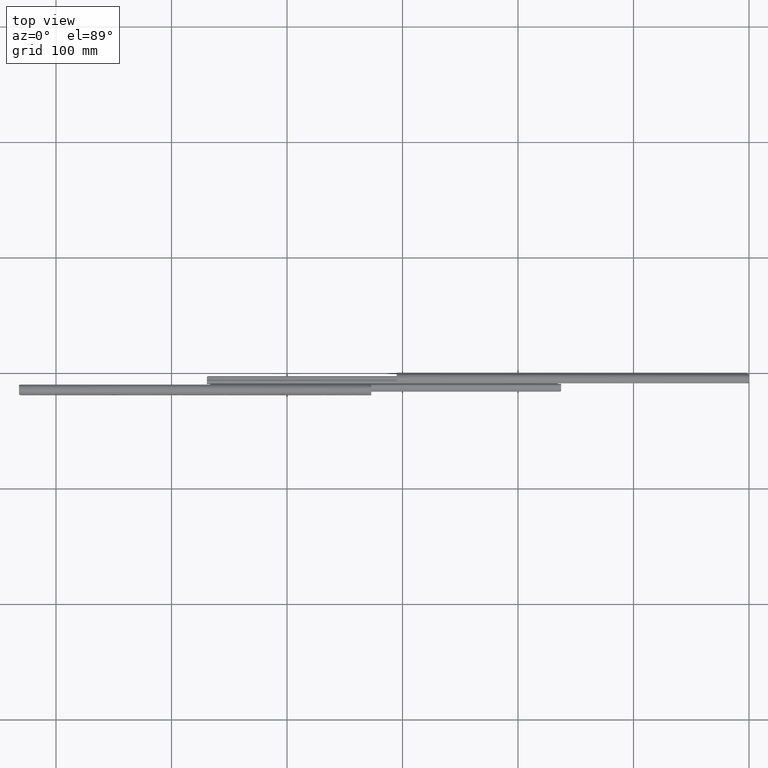
[diagram: clean part render]
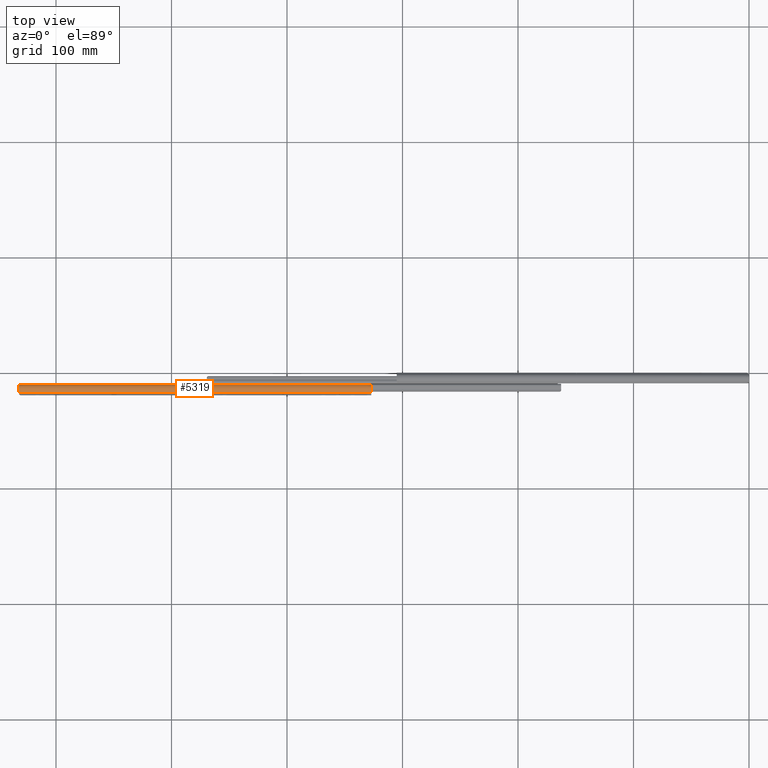
[diagram: same view with one face highlighted and labeled with its STEP entity id]
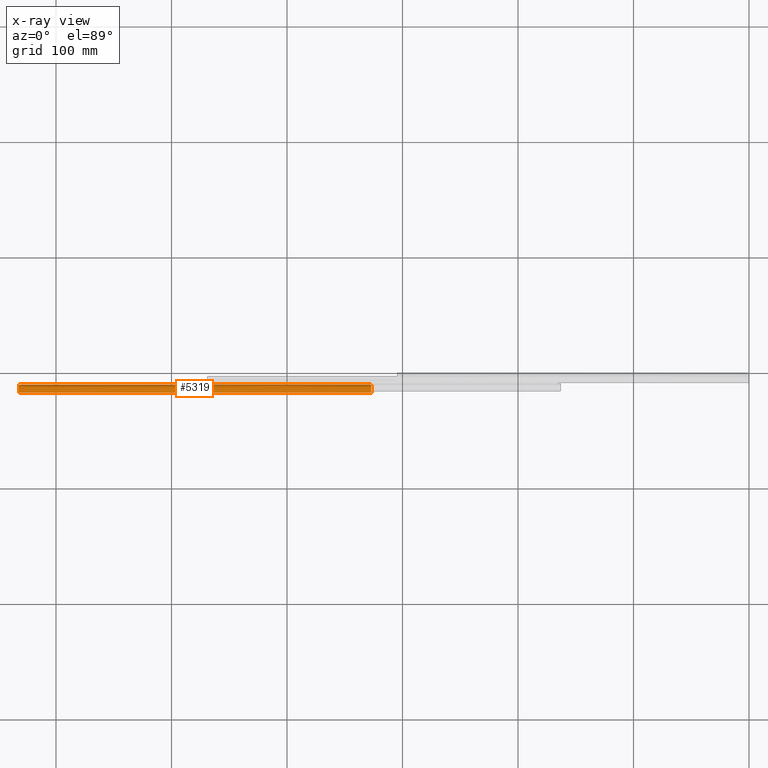
[diagram: x-ray of the same camera — body ghosted, the highlighted face saturated]
A machine part, top view. The second image highlights one B-rep face of the part: STEP entity #5319.
The next image is the same camera in x-ray: the body ghosted, the highlighted face saturated — about 0% of this face is hidden behind the body in this view.
In plain terms, the highlighted face is a freeform B-spline surface patch.
Its self-contained STEP definition (entity closure, byte-faithful):
#3835=CARTESIAN_POINT('',(-630.399999999999980,-10.400000006285840,15.138563460618050));
#3836=VERTEX_POINT('',#3835);
#3837=CARTESIAN_POINT('',(-632.0,-11.302638518556201,16.501614328666850));
#3838=VERTEX_POINT('',#3837);
#3839=CARTESIAN_POINT('',(-630.399999999999980,-10.400000006285840,15.138563460618050));
#3840=CARTESIAN_POINT('',(-630.507510650755190,-10.399999847389481,15.138563060623900));
#3841=CARTESIAN_POINT('',(-630.613197468237670,-10.403921637384050,15.148546636778301));
#3842=CARTESIAN_POINT('',(-630.769101779199790,-10.415794548543010,15.177753711239140));
#3843=CARTESIAN_POINT('',(-630.820628880005070,-10.420764661280881,15.189876977429890));
#3844=CARTESIAN_POINT('',(-630.922779118537050,-10.432923181559531,15.218958878442230));
#3845=CARTESIAN_POINT('',(-630.973457581063030,-10.440137825452069,15.235973879352491));
#3846=CARTESIAN_POINT('',(-631.120714077698840,-10.464931437132609,15.293049588916210));
#3847=CARTESIAN_POINT('',(-631.213730047605960,-10.485727786597931,15.339377905997329));
#3848=CARTESIAN_POINT('',(-631.345529011461740,-10.524770383152950,15.420602495762960));
#3849=CARTESIAN_POINT('',(-631.388390999425950,-10.539195625047730,15.449821723506240));
#3850=CARTESIAN_POINT('',(-631.470226039969590,-10.570629325487760,15.511326164733971));
#3851=CARTESIAN_POINT('',(-631.509084929386520,-10.587569194591801,15.543485657188331));
#3852=CARTESIAN_POINT('',(-631.619664179419260,-10.642366941530190,15.643828412097781));
#3853=CARTESIAN_POINT('',(-631.685439662761500,-10.684161317216001,15.715845951868150));
#3854=CARTESIAN_POINT('',(-631.771909505984350,-10.756635717824730,15.830767086955770));
#3855=CARTESIAN_POINT('',(-631.798342710821090,-10.782170368119541,15.869798213791150));
#3856=CARTESIAN_POINT('',(-631.846116544575920,-10.835615070032651,15.948310864425270));
#3857=CARTESIAN_POINT('',(-631.888982026440320,-10.891588250845560,16.027518410731901));
#3858=CARTESIAN_POINT('',(-631.922322139277980,-10.952901375299120,16.107761205598329));
#3859=CARTESIAN_POINT('',(-631.950932325407170,-11.017063857677501,16.188375003247518));
#3860=CARTESIAN_POINT('',(-631.962849954100190,-11.050613901076460,16.228898812355119));
#3861=CARTESIAN_POINT('',(-631.990993506666090,-11.153651158201130,16.348385031450810));
#3862=CARTESIAN_POINT('',(-631.999999999999770,-11.226162785926270,16.426097027481848));
#3863=CARTESIAN_POINT('',(-632.0,-11.302638518556201,16.501614328666850));
#3864=B_SPLINE_CURVE_WITH_KNOTS('',3,(#3839,#3840,#3841,#3842,#3843,#3844,#3845,#3846,#3847,#3848,#3849,#3850,#3851,#3852,#3853,#3854,#3855,#3856,#3857,#3858,#3859,#3860,#3861,#3862,#3863),.UNSPECIFIED.,.F.,.U.,(4,2,2,2,2,2,2,2,2,1,2,2,4),(0.0,0.124999999999859,0.187499999999789,0.249999999999719,0.374999999999698,0.437499999999742,0.499999999999786,0.624999999999785,0.687499999999817,0.749999999999850,0.812499999999882,0.874999999999914,1.0),.UNSPECIFIED.);
#3865=EDGE_CURVE('',#3836,#3838,#3864,.T.);
#4114=CARTESIAN_POINT('',(-327.0,-11.302638518556201,16.501614328666850));
#4115=VERTEX_POINT('',#4114);
#4116=CARTESIAN_POINT('',(-328.600000000000020,-10.400000006285840,15.138563460618050));
#4117=VERTEX_POINT('',#4116);
#4118=CARTESIAN_POINT('',(-327.0,-11.302638518556201,16.501614328666850));
#4119=CARTESIAN_POINT('',(-326.999999999999890,-11.226194380424820,16.426128226022620));
#4120=CARTESIAN_POINT('',(-327.009002831973990,-11.153967464565710,16.348703280249410));
#4121=CARTESIAN_POINT('',(-327.036830947829800,-11.051633310267110,16.230104820762030));
#4122=CARTESIAN_POINT('',(-327.048506875193880,-11.018525133689611,16.190162416846832));
#4123=CARTESIAN_POINT('',(-327.076973595464890,-10.954286019620771,16.109547304402518));
#4124=CARTESIAN_POINT('',(-327.093818583984730,-10.923146488271710,16.068838571262930));
#4125=CARTESIAN_POINT('',(-327.151098751051680,-10.834730393120550,15.948717816974790));
#4126=CARTESIAN_POINT('',(-327.198518514397220,-10.781641204459710,15.870322951846401));
#4127=CARTESIAN_POINT('',(-327.284002465993920,-10.709667387062000,15.756336066509281));
#4128=CARTESIAN_POINT('',(-327.315104708912320,-10.686836367462430,15.718734348046519));
#4129=CARTESIAN_POINT('',(-327.381318515543800,-10.644274581007471,15.646143142053850));
#4130=CARTESIAN_POINT('',(-327.416320724215100,-10.624571921532810,15.611224716890330));
#4131=CARTESIAN_POINT('',(-327.526890365006920,-10.569668163475651,15.510742359905510));
#4132=CARTESIAN_POINT('',(-327.608092741817470,-10.538598888792480,15.449330084750910));
#4133=CARTESIAN_POINT('',(-327.785317902997010,-10.485921565894611,15.339821627805350));
#4134=CARTESIAN_POINT('',(-327.878583691911270,-10.465089672701231,15.293401327635159));
#4135=CARTESIAN_POINT('',(-328.025201453344610,-10.440343947868611,15.236454534644510));
#4136=CARTESIAN_POINT('',(-328.075202352165720,-10.433193582985719,15.219599354771789));
#4137=CARTESIAN_POINT('',(-328.177520077977990,-10.420955957408630,15.190340599907261));
#4138=CARTESIAN_POINT('',(-328.229663563854390,-10.415901291471140,15.178014953838490));
#4139=CARTESIAN_POINT('',(-328.386485037344810,-10.403920717214801,15.148547022616670));
#4140=CARTESIAN_POINT('',(-328.492494592945770,-10.399999847389440,15.138563060623950));
#4141=CARTESIAN_POINT('',(-328.600000000000020,-10.400000006285840,15.138563460618050));
#4142=B_SPLINE_CURVE_WITH_KNOTS('',3,(#4118,#4119,#4120,#4121,#4122,#4123,#4124,#4125,#4126,#4127,#4128,#4129,#4130,#4131,#4132,#4133,#4134,#4135,#4136,#4137,#4138,#4139,#4140,#4141),.UNSPECIFIED.,.F.,.U.,(4,2,2,2,2,2,2,2,2,2,2,4),(0.0,0.124999999999975,0.187499999999963,0.249999999999952,0.374999999999951,0.437499999999950,0.499999999999949,0.624999999999992,0.750000000000035,0.812500000000026,0.875000000000018,1.0),.UNSPECIFIED.);
#4143=EDGE_CURVE('',#4115,#4117,#4142,.T.);
#5023=CARTESIAN_POINT('',(-631.997873342652950,-17.279057618193299,16.065402712160751));
#5024=VERTEX_POINT('',#5023);
#5038=CARTESIAN_POINT('',(-632.0,-17.215175400252999,16.147869559069100));
#5039=VERTEX_POINT('',#5038);
#5040=CARTESIAN_POINT('',(-631.997873342652950,-17.279057618193299,16.065402712160751));
#5041=CARTESIAN_POINT('',(-631.999305848682520,-17.258132586328379,16.093158874588280));
#5042=CARTESIAN_POINT('',(-632.0,-17.236838632216379,16.120648295352531));
#5043=CARTESIAN_POINT('',(-632.0,-17.215175400252949,16.147869559069150));
#5044=QUASI_UNIFORM_CURVE('',3,(#5040,#5041,#5042,#5043),.UNSPECIFIED.,.F.,.U.);
#5045=EDGE_CURVE('',#5024,#5039,#5044,.T.);
#5258=CARTESIAN_POINT('',(-319.374999999999890,-10.346825804991530,14.996919802555990));
#5259=CARTESIAN_POINT('',(-639.815625000000180,-10.346825804991530,14.996919802555990));
#5260=CARTESIAN_POINT('',(-319.375000000000060,-13.069977453441691,22.692067272698377));
#5261=CARTESIAN_POINT('',(-639.815625000000180,-13.069977453441691,22.692067272698377));
#5262=CARTESIAN_POINT('',(-319.374999999999890,-17.457296849083129,15.808588645701411));
#5263=CARTESIAN_POINT('',(-639.815625000000180,-17.457296849083129,15.808588645701411));
#5271=(BOUNDED_SURFACE()B_SPLINE_SURFACE(1,2,((#5258,#5260,#5262),(#5259,#5261,#5263)),.UNSPECIFIED.,.F.,.F.,.U.)B_SPLINE_SURFACE_WITH_KNOTS((2,2),(3,3),(0.0,320.440625000000180),(0.0,9.951044429156029),.UNSPECIFIED.)GEOMETRIC_REPRESENTATION_ITEM()RATIONAL_B_SPLINE_SURFACE(((1.0,0.438371146789078,1.0),(1.0,0.438371146789078,1.0)))REPRESENTATION_ITEM('')SURFACE());
#5272=CARTESIAN_POINT('',(-327.0,-17.279057999999850,16.065403000000000));
#5273=VERTEX_POINT('',#5272);
#5274=CARTESIAN_POINT('',(-327.0,-17.279057999999850,16.065403000000000));
#5275=CARTESIAN_POINT('',(-327.0,-16.191553353802210,17.507930742604255));
#5276=CARTESIAN_POINT('',(-327.0,-14.389815680728510,17.639437400652930));
#5277=CARTESIAN_POINT('',(-327.0,-12.588078007654797,17.770944058701605));
#5278=CARTESIAN_POINT('',(-327.0,-11.302638518556130,16.501614328666921));
#5286=(BOUNDED_CURVE()B_SPLINE_CURVE(2,(#5274,#5275,#5276,#5277,#5278),.UNSPECIFIED.,.F.,.U.)B_SPLINE_CURVE_WITH_KNOTS((3,2,3),(0.0,0.500000000000000,1.0),.UNSPECIFIED.)CURVE()GEOMETRIC_REPRESENTATION_ITEM()RATIONAL_B_SPLINE_CURVE((1.0,0.910635857273627,1.0,0.910635857273627,1.0))REPRESENTATION_ITEM(''));
#5287=EDGE_CURVE('',#5273,#4115,#5286,.T.);
#5288=ORIENTED_EDGE('',*,*,#5287,.T.);
#5289=ORIENTED_EDGE('',*,*,#4143,.T.);
#5290=CARTESIAN_POINT('',(-328.600000000000020,-10.400000006285840,15.138563460618050));
#5291=CARTESIAN_POINT('',(-630.399999999999980,-10.400000006285840,15.138563460618050));
#5292=QUASI_UNIFORM_CURVE('',1,(#5290,#5291),.UNSPECIFIED.,.F.,.U.);
#5293=EDGE_CURVE('',#4117,#3836,#5292,.T.);
#5294=ORIENTED_EDGE('',*,*,#5293,.T.);
#5295=ORIENTED_EDGE('',*,*,#3865,.T.);
#5296=CARTESIAN_POINT('',(-632.0,-17.215175400253042,16.147869559069129));
#5297=CARTESIAN_POINT('',(-632.0,-16.109776723024904,17.536875084912410));
#5298=CARTESIAN_POINT('',(-632.0,-14.337771449614291,17.642893467496911));
#5299=CARTESIAN_POINT('',(-632.0,-12.565766176203661,17.748911850081413));
#5300=CARTESIAN_POINT('',(-632.0,-11.302638518556130,16.501614328666921));
#5308=(BOUNDED_CURVE()B_SPLINE_CURVE(2,(#5296,#5297,#5298,#5299,#5300),.UNSPECIFIED.,.F.,.U.)B_SPLINE_CURVE_WITH_KNOTS((3,2,3),(0.0,0.500000000000000,1.0),.UNSPECIFIED.)CURVE()GEOMETRIC_REPRESENTATION_ITEM()RATIONAL_B_SPLINE_CURVE((1.0,0.913323076196492,1.0,0.913323076196492,1.0))REPRESENTATION_ITEM(''));
#5309=EDGE_CURVE('',#5039,#3838,#5308,.T.);
#5310=ORIENTED_EDGE('',*,*,#5309,.F.);
#5311=ORIENTED_EDGE('',*,*,#5045,.F.);
#5312=CARTESIAN_POINT('',(-327.0,-17.279057999999850,16.065403000000000));
#5313=CARTESIAN_POINT('',(-631.997873342652950,-17.279057618193299,16.065402712160751));
#5314=QUASI_UNIFORM_CURVE('',1,(#5312,#5313),.UNSPECIFIED.,.F.,.U.);
#5315=EDGE_CURVE('',#5273,#5024,#5314,.T.);
#5316=ORIENTED_EDGE('',*,*,#5315,.F.);
#5317=EDGE_LOOP('',(#5288,#5289,#5294,#5295,#5310,#5311,#5316));
#5318=FACE_OUTER_BOUND('',#5317,.T.);
#5319=ADVANCED_FACE('',(#5318),#5271,.T.);